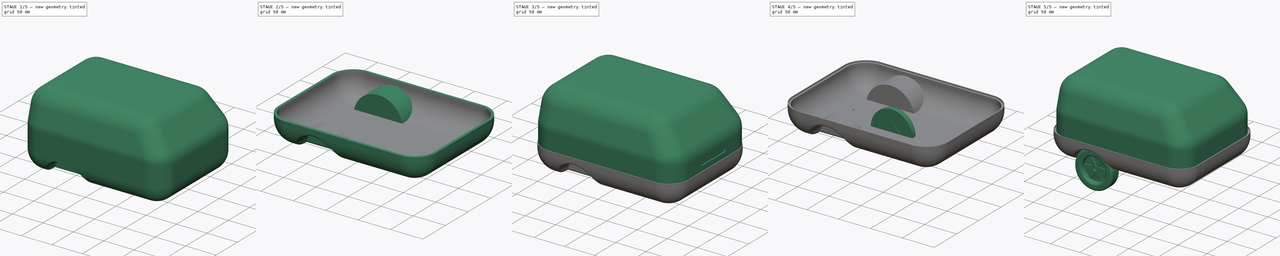
[diagram: build sequence overview — one tinted view per stage of 5, left to right]
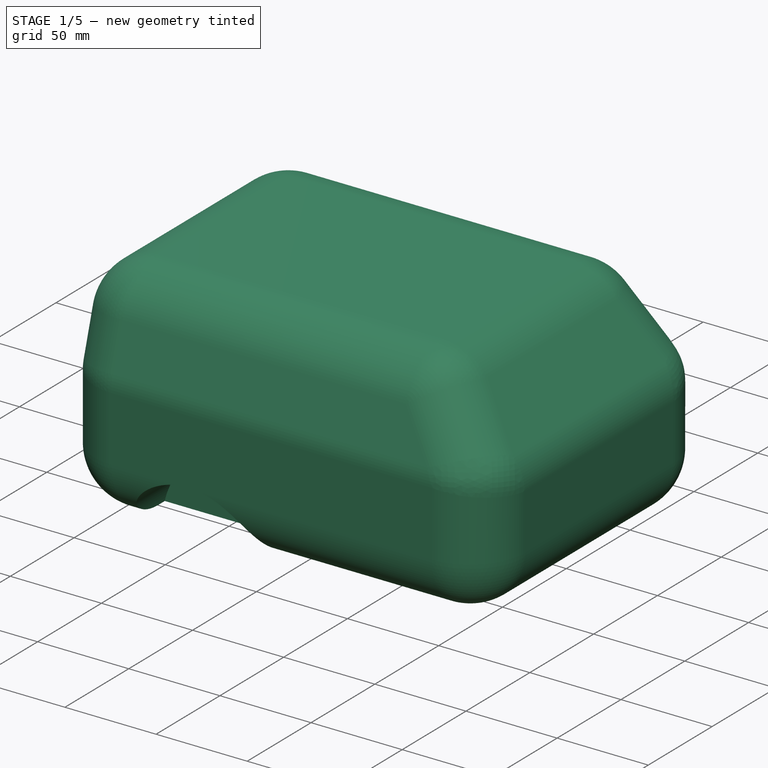
[diagram: stage 1 of 5 — iso view after this stage's code; geometry added in this stage tinted green]
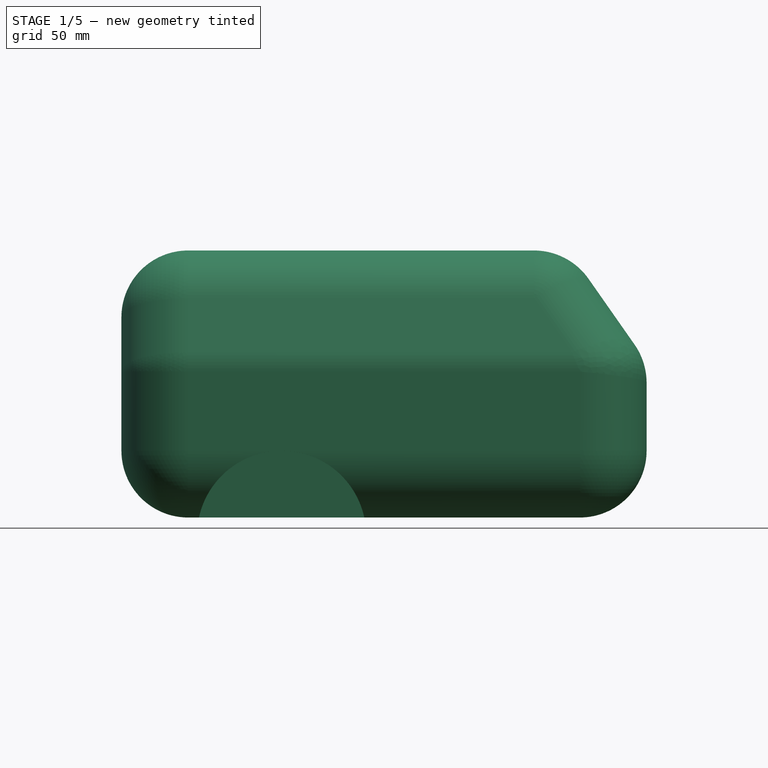
[diagram: stage 1 of 5 — front view after this stage's code; geometry added in this stage tinted green]
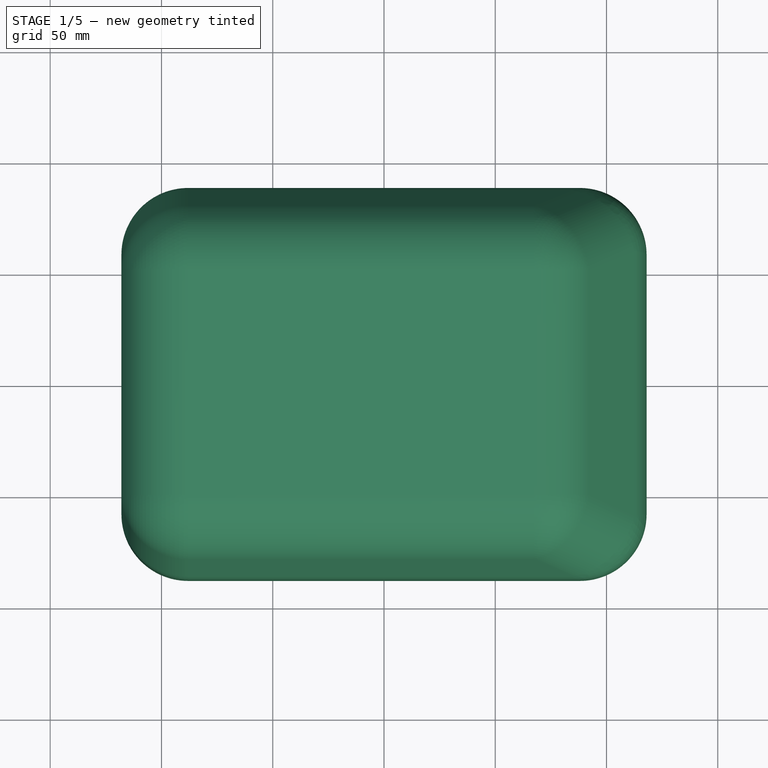
[diagram: stage 1 of 5 — top view after this stage's code; geometry added in this stage tinted green]
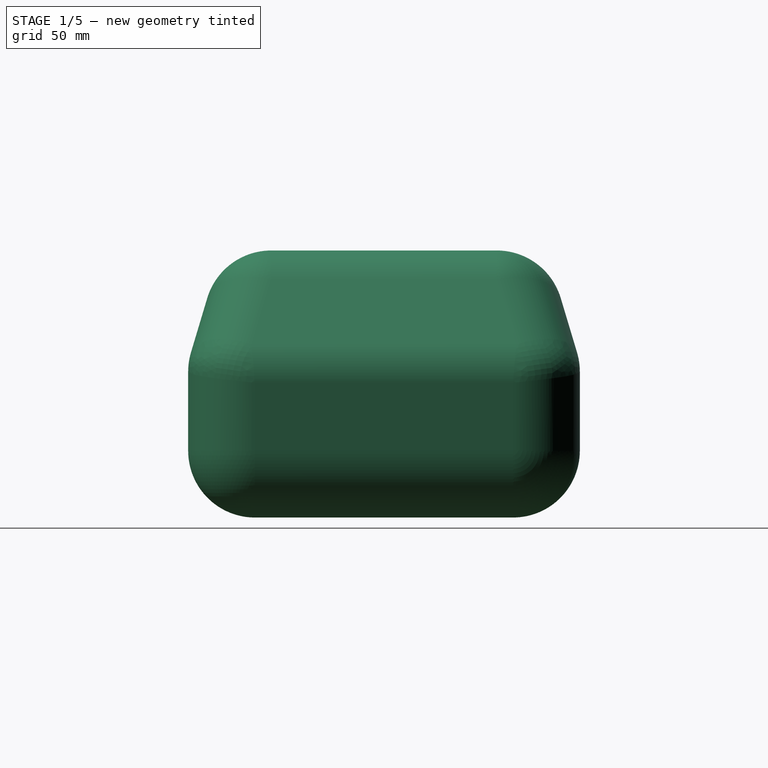
[diagram: stage 1 of 5 — right view after this stage's code; geometry added in this stage tinted green]
FCSTD DOCUMENT  (FreeCAD 0.20R29177 +426 (Git))
Label: bot_3_holes
License: All rights reserved
LicenseURL: http://en.wikipedia.org/wiki/All_rights_reserved
objects: Sketcher::SketchObject×8, PartDesign::Pad×5, Part::FeaturePython×5, PartDesign::Pocket×4, PartDesign::Body×4, Part::Feature×4, PartDesign::Chamfer×2, PartDesign::Fillet×2, App::DocumentObjectGroup×2, PartDesign::FeatureBase×2, PartDesign::Thickness×2, Part::Plane×1, PartDesign::Mirrored×1, PartDesign::PolarPattern×1, App::Part×1, Part::Mirroring×1, Part::MultiFuse×1, Part::Cut×1
note: 59 computed .brp shape members not serialized (recipe doc carries the construction recipe); baked Part::Feature solids carry a one-line shape summary decoded from their .brp

FEATURE [Sketcher::SketchObject] Sketch
  FullyConstrained = true
  MapMode = 5
  Support = -> [XY_Plane]
  sketch-geometry (4):
    g0: LineSegment StartX=-118 StartY=88 StartZ=0 EndX=118 EndY=88 EndZ=0
    g1: LineSegment StartX=118 StartY=88 StartZ=0 EndX=118 EndY=-88 EndZ=0
    g2: LineSegment StartX=118 StartY=-88 StartZ=0 EndX=-118 EndY=-88 EndZ=0
    g3: LineSegment StartX=-118 StartY=-88 StartZ=0 EndX=-118 EndY=88 EndZ=0
  constraints (11):
    c: Coincident(g0,g1)
    c: Coincident(g1,g2)
    c: Coincident(g2,g3)
    c: Coincident(g3,g0)
    c: Horizontal(g0)
    c: Horizontal(g2)
    c: Vertical(g1)
    c: Vertical(g3)
    c: Symmetric(g0,g1,g-1)
    c: DistanceX(g0,g0) = 236
    c: DistanceY(g3,g3) = 176
FEATURE [PartDesign::Pad] Pad
  Direction = (0,0,1)
  Length = 120
  Length2 = 10
  Profile = -> Sketch
  ReferenceAxis = -> Sketch [N_Axis]
  Type = 0
FEATURE [Sketcher::SketchObject] Sketch001
  FullyConstrained = true
  MapMode = 5
  Placement = pos=(0,-88,0) rot=(1,0,0;1.5708rad)
  Support = -> [Pad]
  sketch-geometry (1):
    g0: Circle CenterX=-46 CenterY=-8 CenterZ=0 NormalX=0 NormalY=0 NormalZ=1 AngleXU=0 Radius=38
  constraints (3):
    c: DistanceY(g0,g-1) = 8
    c: DistanceX(g0,g-1) = 46
    c: Diameter(g0) = 76
FEATURE [PartDesign::Chamfer] Chamfer
  Angle = 45
  Base = -> Pad [Edge10,Edge4]
  BaseFeature = -> Pad
  ChamferType = 1
  FlipDirection = true
  Size = 15
  Size2 = 50
  SupportTransform = false
  UseAllEdges = false
FEATURE [PartDesign::Chamfer] Chamfer001
  Angle = 45
  Base = -> Chamfer [Edge14]
  BaseFeature = -> Chamfer
  ChamferType = 1
  FlipDirection = false
  Size = 50
  Size2 = 35
  SupportTransform = false
  UseAllEdges = false
FEATURE [PartDesign::Fillet] Fillet
  Base = -> Chamfer001 [Edge1,Edge2,Edge3,Edge4,Edge5,Edge6,Edge7,Edge8,Edge9,Edge10,Edge11,Edge12,Edge13,Edge14,Edge15,Edge16,Edge17,Edge18,Edge19,Edge20,Edge21]
  BaseFeature = -> Chamfer001
  Radius = 30
  SupportTransform = false
  UseAllEdges = true
FEATURE [Part::Plane] Plane001
  AttacherType = Attacher::AttachEngine3D
  Length = 260
  Placement = pos=(-130,-100,35) rot=(0,0,1;0rad)
  Width = 200
FEATURE [PartDesign::Pocket] Pocket
  BaseFeature = -> Fillet
  Direction = (0,1,-2e-16)
  Length = 35
  Length2 = 5
  Profile = -> Sketch001
  ReferenceAxis = -> Sketch001 [N_Axis]
  Type = 0
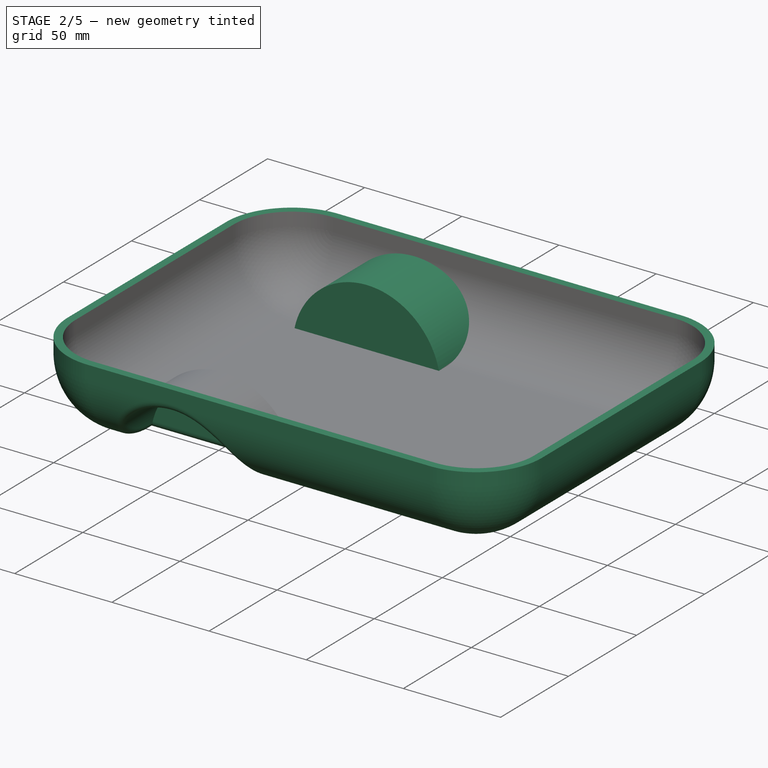
[diagram: stage 2 of 5 — iso view after this stage's code; geometry added in this stage tinted green]
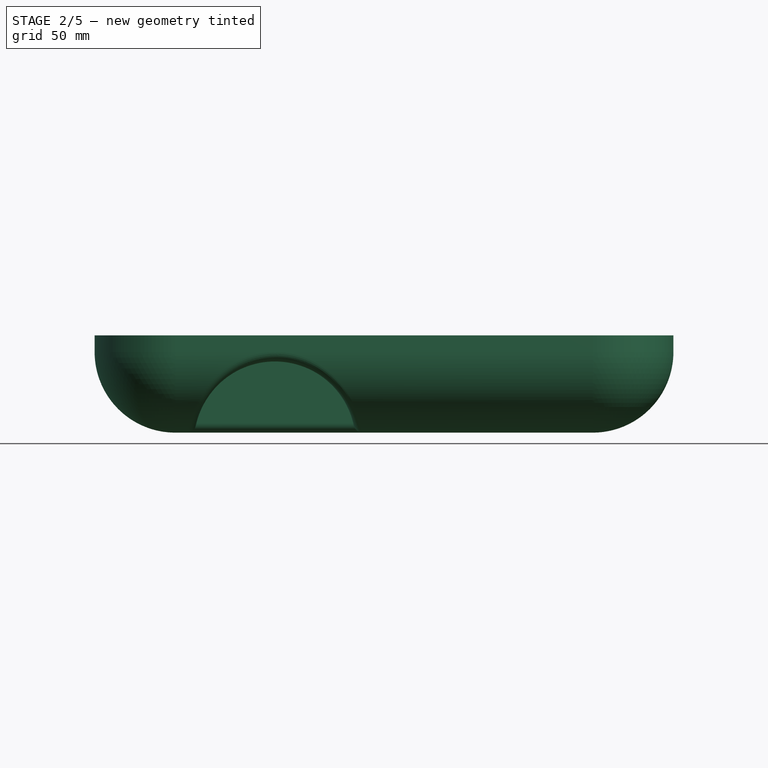
[diagram: stage 2 of 5 — front view after this stage's code; geometry added in this stage tinted green]
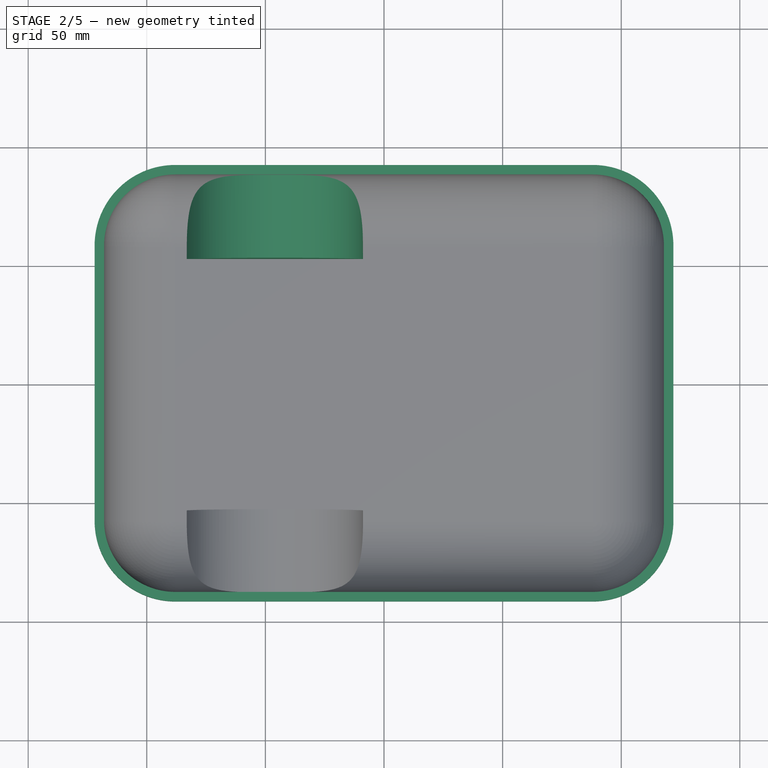
[diagram: stage 2 of 5 — top view after this stage's code; geometry added in this stage tinted green]
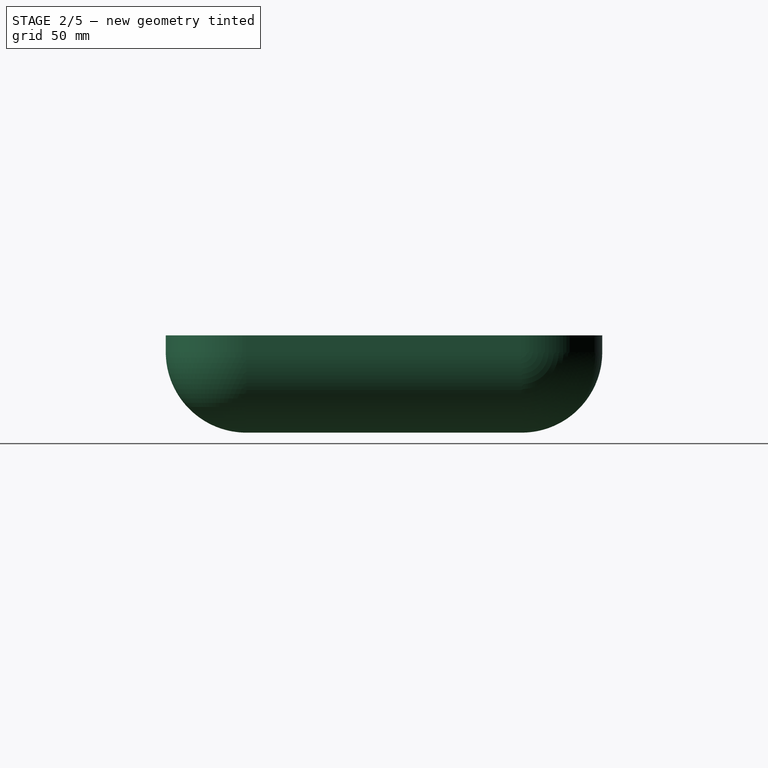
[diagram: stage 2 of 5 — right view after this stage's code; geometry added in this stage tinted green]
FEATURE [PartDesign::Mirrored] Mirrored
  BaseFeature = -> Pocket
  MirrorPlane = -> XZ_Plane
  Originals = -> [Pocket]
FEATURE [Part::Feature] Fusion001  label="Wheel001"
  Placement = pos=(-46,70,-8) rot=(0,0,1;0rad)
  shape: bbox 70.36 x 20 x 70.36 mm, 78 faces (baked)
FEATURE [Part::FeaturePython] Slice001  # WARN: FeaturePython — macro-defined, semantics opaque (R4)
  Base = -> Mirrored
  Mode = 1
  Tolerance = 0
  Tools = -> [Plane001]
FEATURE [Part::FeaturePython] Slice001_child1  label="Slice001.1"  # WARN: FeaturePython — macro-defined, semantics opaque (R4)
  Base = -> Slice001
  FilterType = 1
  Invert = false
  OverrideMaxVal = 0
  WindowFrom = 80
  WindowTo = 100
  items = 1
FEATURE [App::DocumentObjectGroup] GrExplode_Slice001  label="Exploded Slice001"
  Group = -> [Slice001_child0,Slice001_child1]
FEATURE [PartDesign::FeatureBase] BaseFeature
  BaseFeature = -> Slice001_child1
FEATURE [PartDesign::Thickness] Thickness
  Base = -> BaseFeature [Face2]
  BaseFeature = -> BaseFeature
  Intersection = false
  Join = 0
  Mode = 0
  SupportTransform = false
  Value = 4
FEATURE [PartDesign::Pad] Pad005
  BaseFeature = -> Thickness
  Direction = (0,0,1)
  Length = 2
  Length2 = 10
  Profile = -> Thickness [Face24]
  Type = 0
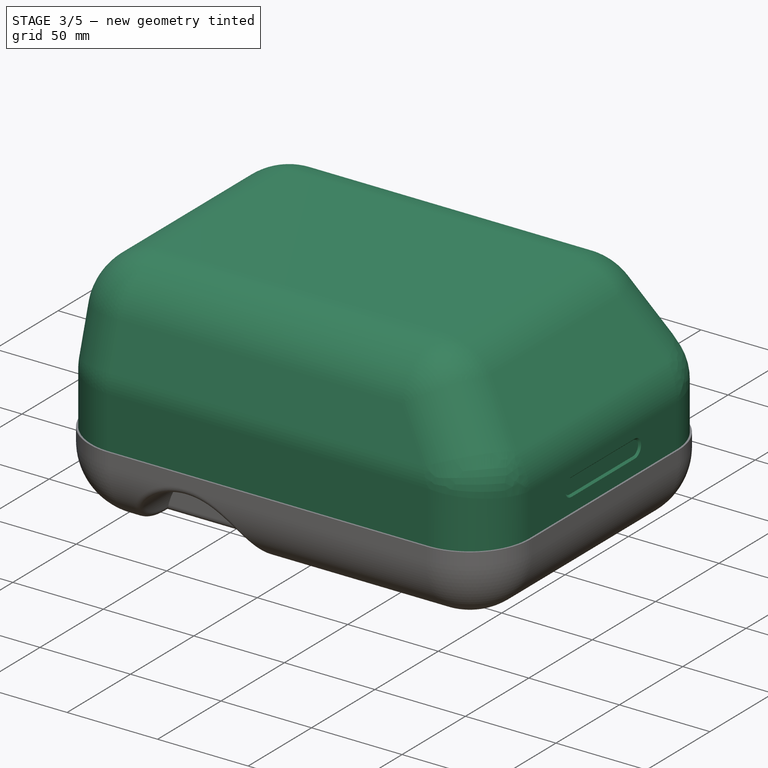
[diagram: stage 3 of 5 — iso view after this stage's code; geometry added in this stage tinted green]
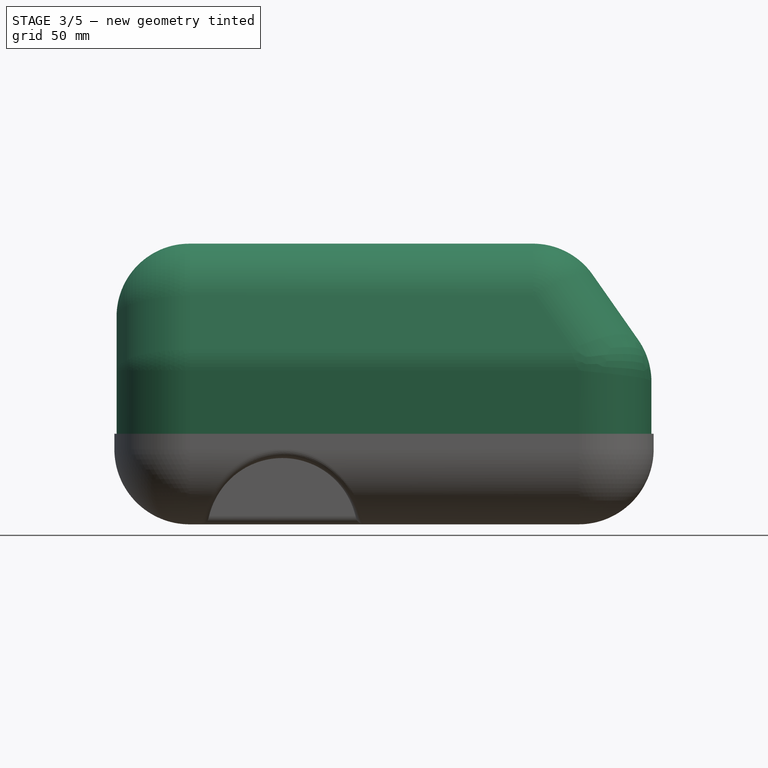
[diagram: stage 3 of 5 — front view after this stage's code; geometry added in this stage tinted green]
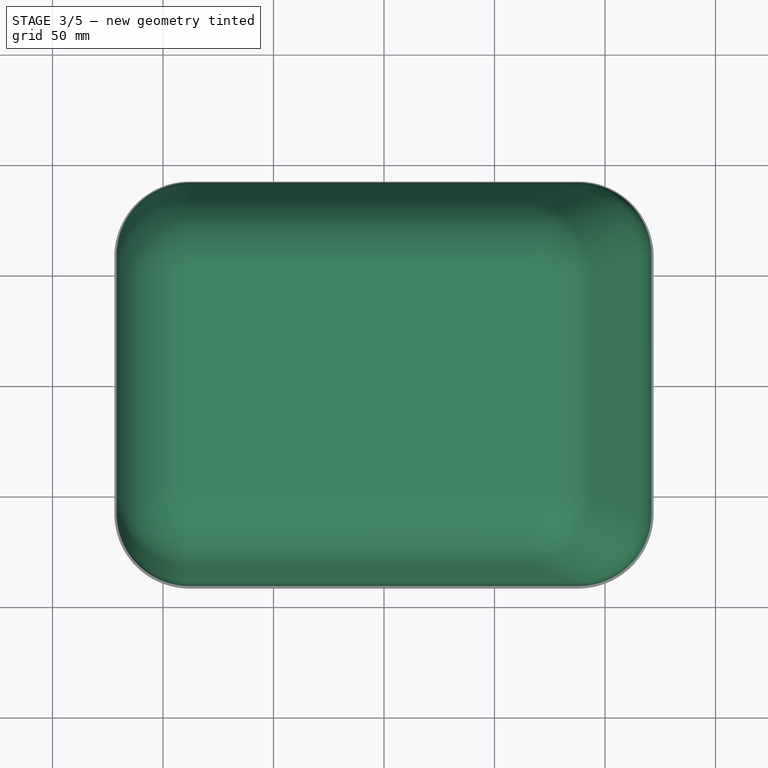
[diagram: stage 3 of 5 — top view after this stage's code; geometry added in this stage tinted green]
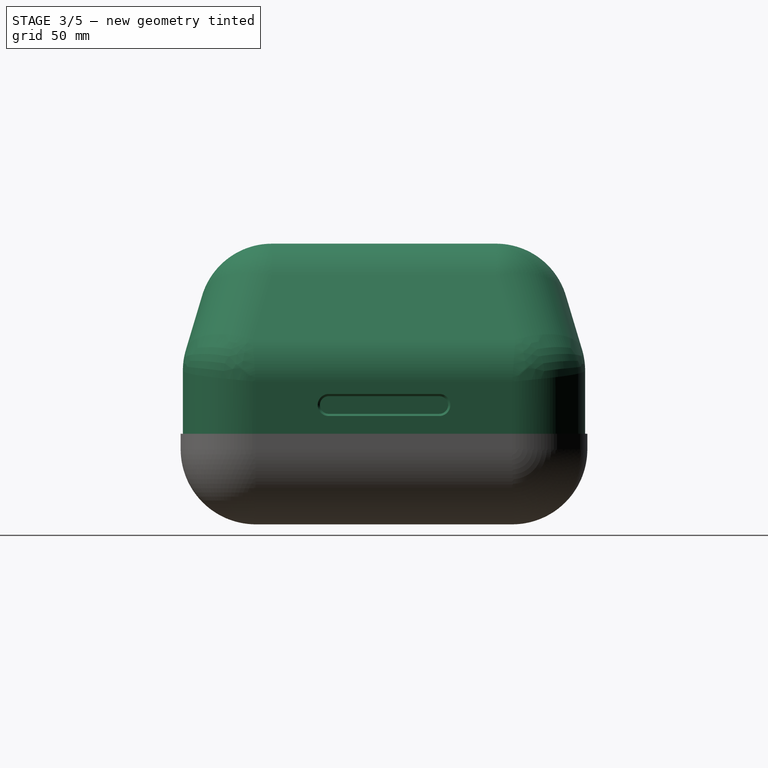
[diagram: stage 3 of 5 — right view after this stage's code; geometry added in this stage tinted green]
FEATURE [Part::FeaturePython] Slice001_child0  label="Slice001.0"  # WARN: FeaturePython — macro-defined, semantics opaque (R4)
  Base = -> Slice001
  FilterType = 1
  Invert = false
  OverrideMaxVal = 0
  WindowFrom = 80
  WindowTo = 100
  items = 0
FEATURE [PartDesign::FeatureBase] BaseFeature001
  BaseFeature = -> Slice001_child0
FEATURE [PartDesign::Thickness] Thickness001
  Base = -> BaseFeature001 [Face19]
  BaseFeature = -> BaseFeature001
  Intersection = false
  Join = 0
  Mode = 0
  SupportTransform = false
  Value = 3
FEATURE [Sketcher::SketchObject] Sketch007
  FullyConstrained = true
  MapMode = 5
  Placement = pos=(121,0,0) rot=(0.57735,0.57735,0.57735;2.0944rad)
  Support = -> [Thickness001]
  sketch-geometry (4):
    g0: ArcOfCircle CenterX=-25 CenterY=50 CenterZ=0 NormalX=0 NormalY=0 NormalZ=1 AngleXU=0 Radius=5 StartAngle=1.5708 EndAngle=4.71239
    g1: ArcOfCircle CenterX=25 CenterY=50 CenterZ=0 NormalX=0 NormalY=0 NormalZ=1 AngleXU=0 Radius=5 StartAngle=4.71239 EndAngle=7.85398
    g2: LineSegment StartX=-25 StartY=45 StartZ=0 EndX=25 EndY=45 EndZ=0
    g3: LineSegment StartX=25 StartY=55 StartZ=0 EndX=-25 EndY=55 EndZ=0
  constraints (9):
    c: Tangent(g0,g2) = -1.5708
    c: Tangent(g2,g1) = -1.5708
    c: Tangent(g1,g3) = -1.5708
    c: Tangent(g3,g0) = -1.5708
    c: Equal(g0,g1)
    c: Symmetric(g1,g0,g-2)
    c: DistanceX(g0,g1) = 50
    c: Diameter(g1) = 10
    c: DistanceY(g-1,g1) = 55
FEATURE [PartDesign::Pocket] Pocket003
  BaseFeature = -> Thickness001
  Direction = (-1,0,0)
  Length = 1
  Length2 = 5
  Profile = -> Sketch007
  ReferenceAxis = -> Sketch007 [N_Axis]
  TaperAngle = -45
  Type = 0
FEATURE [PartDesign::Body] Body005  label="Cap"
  BaseFeature = -> Slice001_child0
  Group = -> [BaseFeature001,Thickness001,Sketch007,Pocket003]
  Origin = -> Origin006
  Tip = -> Pocket003
FEATURE [Sketcher::SketchObject] Sketch008
  FullyConstrained = true
  MapMode = 5
  Support = -> [Pad005]
  sketch-geometry (4):
    g0: Circle CenterX=-80 CenterY=18.5 CenterZ=0 NormalX=0 NormalY=0 NormalZ=1 AngleXU=0 Radius=1.5
    g1: Circle CenterX=-43 CenterY=18.5 CenterZ=0 NormalX=0 NormalY=0 NormalZ=1 AngleXU=0 Radius=1.5
    g2: Circle CenterX=-80 CenterY=-18.5 CenterZ=0 NormalX=0 NormalY=0 NormalZ=1 AngleXU=0 Radius=1.5
    g3: Circle CenterX=-43 CenterY=-18.5 CenterZ=0 NormalX=0 NormalY=0 NormalZ=1 AngleXU=0 Radius=1.5
  constraints (10):
    c: Diameter(g0) = 3
    c: DistanceX(g0,g-1) = 80
    c: Equal(g0,g1)
    c: Equal(g3,g0)
    c: Equal(g2,g0)
    c: Symmetric(g1,g3,g-1)
    c: DistanceX(g0,g1) = 37
    c: Symmetric(g2,g0,g-1)
    c: DistanceY(g0,g1) = 0
    c: DistanceY(g2,g0) = 37
FEATURE [PartDesign::Pocket] Pocket004
  BaseFeature = -> Pad005
  Direction = (0,0,-1)
  Length = 5
  Length2 = 5
  Profile = -> Sketch008
  ReferenceAxis = -> Sketch008 [N_Axis]
  Type = 0
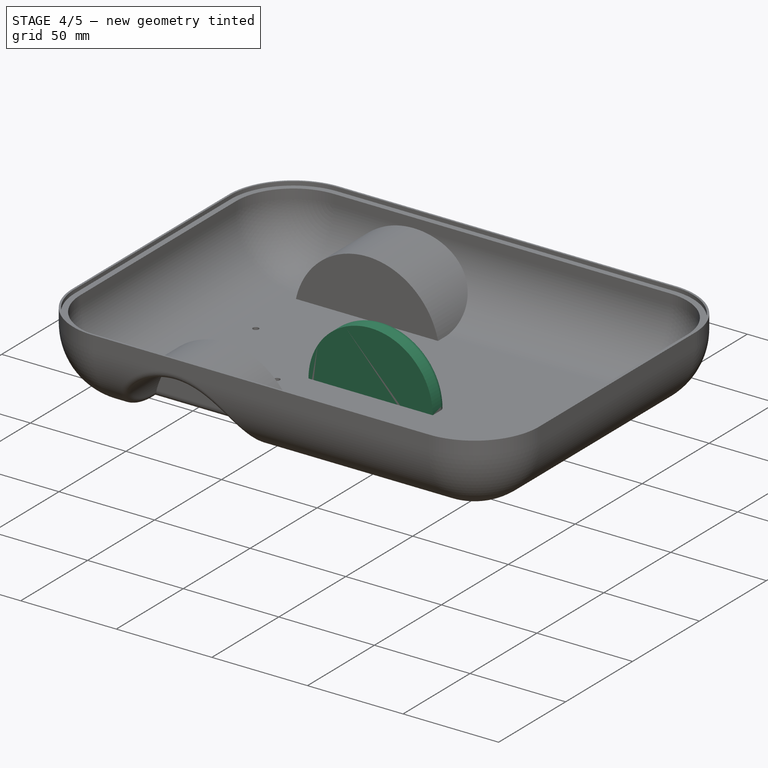
[diagram: stage 4 of 5 — iso view after this stage's code; geometry added in this stage tinted green]
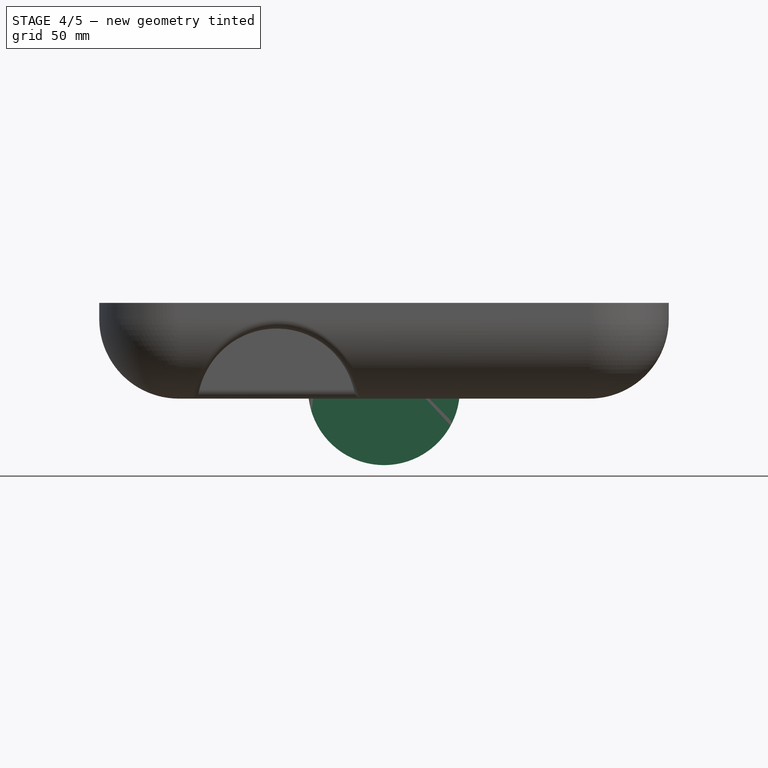
[diagram: stage 4 of 5 — front view after this stage's code; geometry added in this stage tinted green]
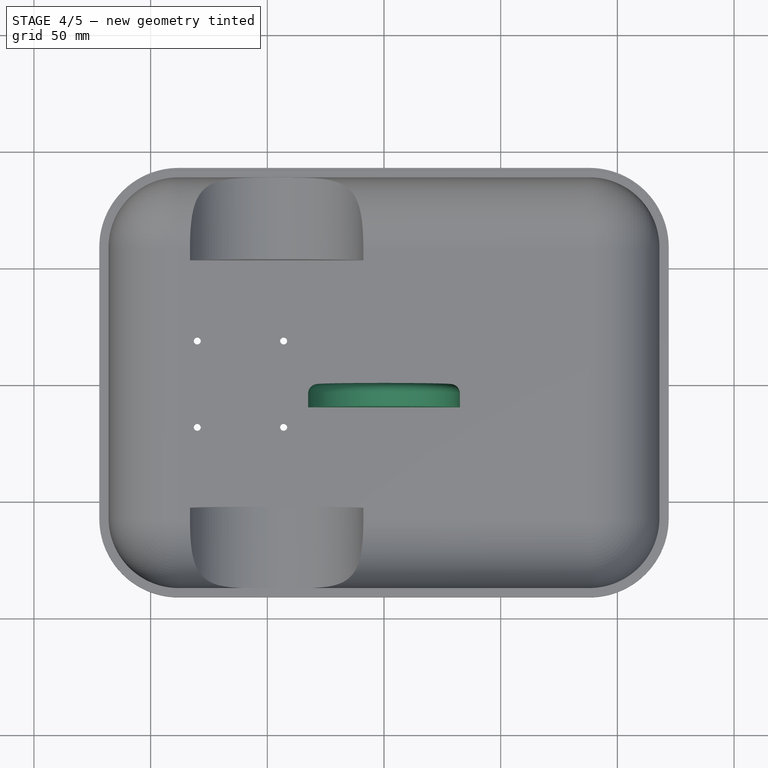
[diagram: stage 4 of 5 — top view after this stage's code; geometry added in this stage tinted green]
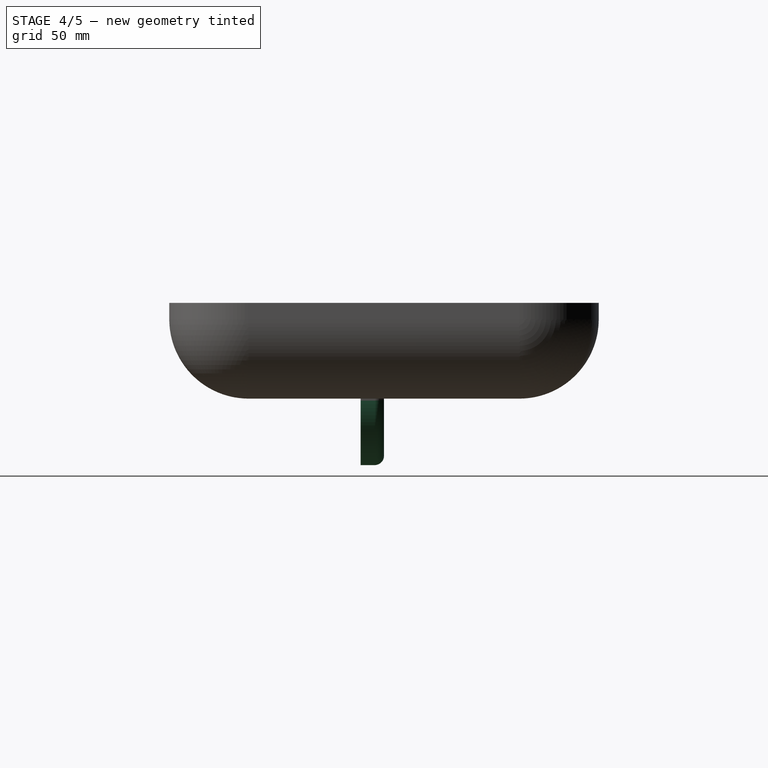
[diagram: stage 4 of 5 — right view after this stage's code; geometry added in this stage tinted green]
FEATURE [App::DocumentObjectGroup] GrExplode_Slice  label="Exploded Slice"
  Group = -> [Slice_child0]
FEATURE [Sketcher::SketchObject] Sketch003
  FullyConstrained = true
  MapMode = 5
  Placement = pos=(0,0,0) rot=(1,0,0;1.5708rad)
  Support = -> [XZ_Plane004]
  sketch-geometry (1):
    g0: Circle CenterX=0 CenterY=0 CenterZ=0 NormalX=0 NormalY=0 NormalZ=1 AngleXU=0 Radius=32.5
  constraints (2):
    c: Coincident(g0,g-1)
    c: Diameter(g0) = 65
FEATURE [PartDesign::Pad] Pad002
  Direction = (0,-1,2e-16)
  Length = 10
  Length2 = 10
  Placement = pos=(0,0,0) rot=(1,0,0;1.5708rad)
  Profile = -> Sketch003
  ReferenceAxis = -> Sketch003 [N_Axis]
  Type = 0
FEATURE [Sketcher::SketchObject] Sketch004
  FullyConstrained = true
  MapMode = 5
  Placement = pos=(0,0,0) rot=(1,0,0;1.5708rad)
  Support = -> [XZ_Plane004]
  sketch-geometry (1):
    g0: Circle CenterX=0 CenterY=0 CenterZ=0 NormalX=0 NormalY=0 NormalZ=1 AngleXU=0 Radius=20
  constraints (2):
    c: Coincident(g0,g-1)
    c: Diameter(g0) = 40
FEATURE [PartDesign::Pocket] Pocket002
  BaseFeature = -> Pad002
  Direction = (0,1,-2e-16)
  Length = 8
  Length2 = 5
  Placement = pos=(0,0,0) rot=(1,0,0;1.5708rad)
  Profile = -> Sketch004
  ReferenceAxis = -> Sketch004 [N_Axis]
  Reversed = true
  Type = 0
FEATURE [PartDesign::Fillet] Fillet002
  Base = -> Pocket002 [Face2]
  BaseFeature = -> Pocket002
  Placement = pos=(0,0,0) rot=(1,0,0;1.5708rad)
  Radius = 4
  SupportTransform = false
  UseAllEdges = false
FEATURE [Sketcher::SketchObject] Sketch005
  FullyConstrained = true
  MapMode = 5
  Placement = pos=(0,-8,1.8e-15) rot=(-1,0,0;1.5708rad)
  Support = -> [Fillet002]
  sketch-geometry (2):
    g0: Circle CenterX=0 CenterY=0 CenterZ=0 NormalX=0 NormalY=0 NormalZ=1 AngleXU=0 Radius=6
    g1: Circle CenterX=0 CenterY=0 CenterZ=0 NormalX=0 NormalY=0 NormalZ=1 AngleXU=0 Radius=3
  constraints (4):
    c: Coincident(g0,g-1)
    c: Coincident(g1,g0)
    c: Diameter(g1) = 6
    c: Diameter(g0) = 12
FEATURE [PartDesign::Pad] Pad003
  BaseFeature = -> Fillet002
  Direction = (0,1,-2e-16)
  Length = 3
  Length2 = 10
  Placement = pos=(0,0,0) rot=(1,0,0;1.5708rad)
  Profile = -> Sketch005
  ReferenceAxis = -> Sketch005 [N_Axis]
  Type = 0
FEATURE [Sketcher::SketchObject] Sketch006
  FullyConstrained = false
  MapMode = 5
  Placement = pos=(0,-8,1.8e-15) rot=(-1,0,0;1.5708rad)
  Support = -> [Pad003]
  sketch-geometry (4):
    g0: LineSegment StartX=3.64366 StartY=4 StartZ=0 EndX=3.64366 EndY=-4 EndZ=0
    g1: LineSegment StartX=3.64366 StartY=-4 StartZ=0 EndX=21.1042 EndY=-2 EndZ=0
    g2: LineSegment StartX=21.1042 StartY=-2 StartZ=0 EndX=21.1042 EndY=2 EndZ=0
    g3: LineSegment StartX=21.1042 StartY=2 StartZ=0 EndX=3.64366 EndY=4 EndZ=0
  constraints (8):
    c: Coincident(g0,g1)
    c: Coincident(g1,g2)
    c: Coincident(g2,g3)
    c: Coincident(g3,g0)
    c: Symmetric(g2,g1,g-1)
    c: Symmetric(g0,g0,g-1)
    c: DistanceY(g2,g2) = 4
    c: DistanceY(g0,g0) = 8
FEATURE [PartDesign::Pad] Pad004
  BaseFeature = -> Pad003
  Direction = (0,1,-2e-16)
  Length = 2
  Length2 = 10
  Placement = pos=(0,0,0) rot=(1,0,0;1.5708rad)
  Profile = -> Sketch006
  ReferenceAxis = -> Sketch006 [N_Axis]
  Type = 0
FEATURE [PartDesign::Body] Body004  label="Base"
  BaseFeature = -> Slice001_child1
  Group = -> [BaseFeature,Thickness,Pad005,Sketch008,Pocket004]
  Origin = -> Origin005
  Tip = -> Pocket004
FEATURE [Part::Cut] Cut  label="Base_Groove"
  Base = -> Body004
  Tool = -> Body005
FEATURE [Part::Feature] L298N_Motor_Driver
  Placement = pos=(-61.3884,-0.29497,0.510836) rot=(-0.57735,0.57735,0.57735;4.18879rad)
  shape: bbox 43 x 43 x 28.01 mm, 1116 faces, 0 solids (baked)
FEATURE [Part::Feature] Feature  label="Arduino nano001"
  Placement = pos=(-6,8,28) rot=(-1,0,0;4.71239rad)
  shape: bbox 44.95 x 17.81 x 20.74 mm, 6942 faces, 133 solids (baked)
FEATURE [Part::Feature] Feature001  label="Raspberry Pi 4 Model B001"
  Placement = pos=(57,13,5) rot=(-0.57735,0.57735,0.57735;4.18879rad)
  shape: bbox 58.41 x 89 x 19.91 mm, 10487 faces, 109 solids (baked)
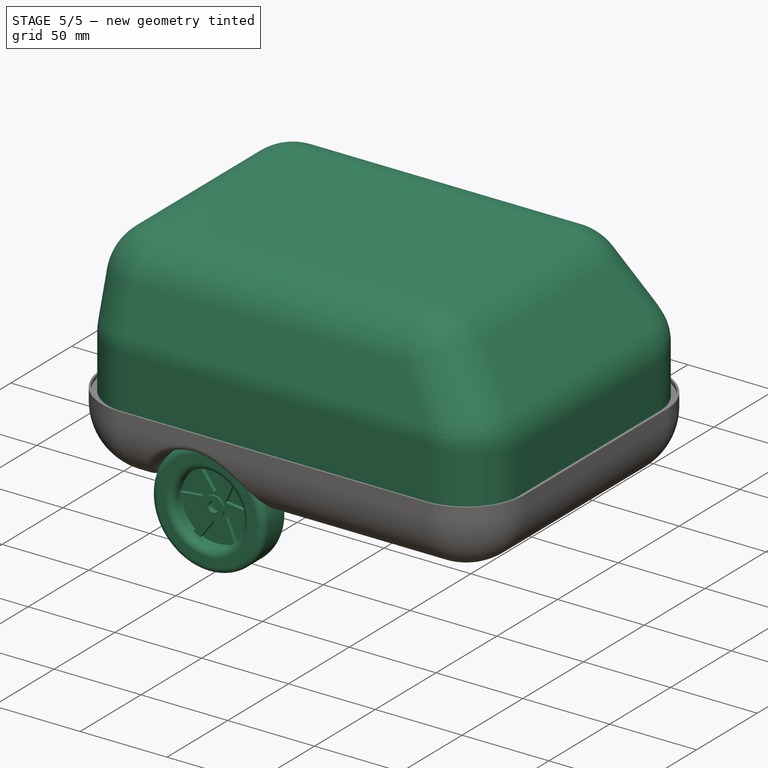
[diagram: stage 5 of 5 — iso view after this stage's code; geometry added in this stage tinted green]
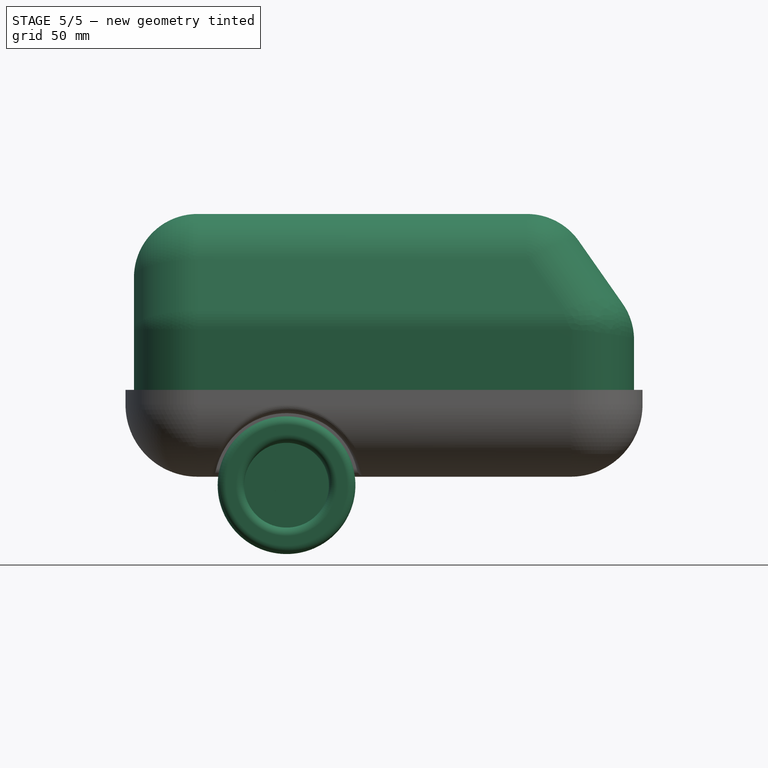
[diagram: stage 5 of 5 — front view after this stage's code; geometry added in this stage tinted green]
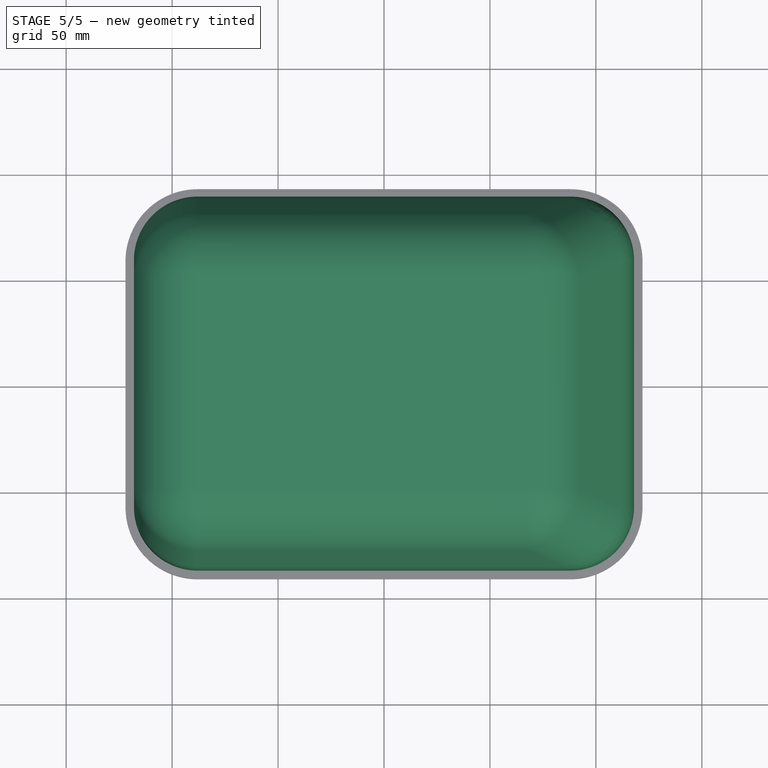
[diagram: stage 5 of 5 — top view after this stage's code; geometry added in this stage tinted green]
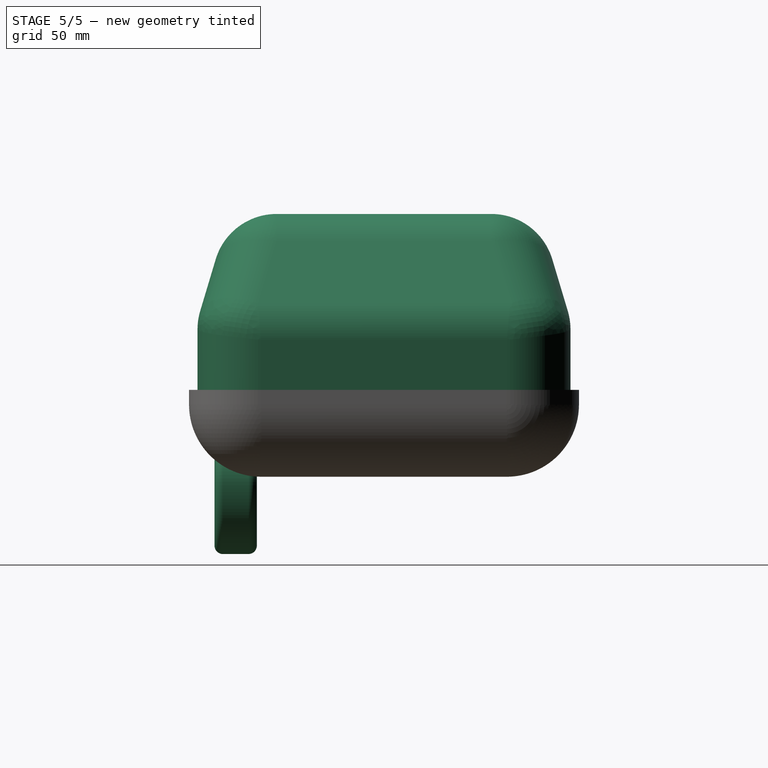
[diagram: stage 5 of 5 — right view after this stage's code; geometry added in this stage tinted green]
FEATURE [PartDesign::Body] Body
  Group = -> [Sketch,Pad,Sketch001,Chamfer,Chamfer001,Fillet,Pocket,Mirrored]
  Origin = -> Origin
  Tip = -> Mirrored
FEATURE [Part::FeaturePython] Slice  # WARN: FeaturePython — macro-defined, semantics opaque (R4)
  Base = -> Body
  Mode = 1
  Tolerance = 0
  Tools = -> [Plane001]
FEATURE [Part::FeaturePython] Slice_child0  label="Slice.0"  # WARN: FeaturePython — macro-defined, semantics opaque (R4)
  Base = -> Slice
  FilterType = 1
  Invert = false
  OverrideMaxVal = 0
  WindowFrom = 80
  WindowTo = 100
  items = 0
FEATURE [PartDesign::PolarPattern] PolarPattern
  Angle = 360
  Axis = -> Sketch006 [N_Axis]
  BaseFeature = -> Pad004
  Occurrences = 6
  Originals = -> [Pad004]
  Placement = pos=(0,0,0) rot=(1,0,0;1.5708rad)
FEATURE [PartDesign::Body] Body003
  Group = -> [Sketch003,Pad002,Sketch004,Pocket002,Fillet002,Sketch005,Pad003,Sketch006,Pad004,PolarPattern]
  Origin = -> Origin004
  Placement = pos=(0,10,0) rot=(0,0,1;0rad)
  Tip = -> PolarPattern
FEATURE [App::Part] Part  label="wheel"
  Group = -> [Body003]
  Origin = -> Origin003
FEATURE [Part::Mirroring] Part__Mirroring  label="Body003 (Mirror #1)"
  Base = (0,0,0)
  Normal = (0,1,0)
  Source = -> Body003
FEATURE [Part::MultiFuse] Fusion  label="Wheel"
  Placement = pos=(-46,-70,-8) rot=(0,0,1;0rad)
  Shapes = -> [Part__Mirroring,Part]
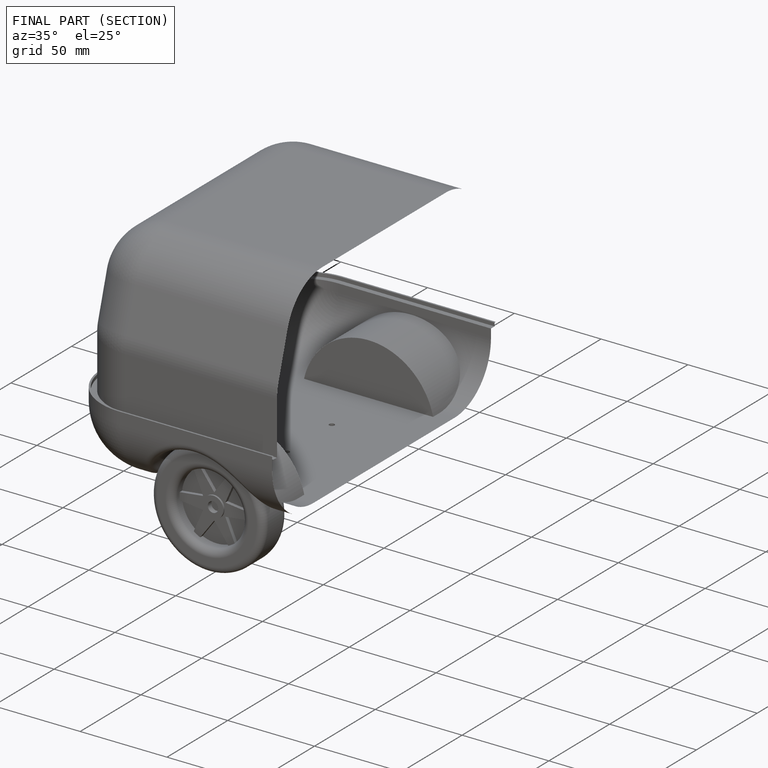
[diagram: finished part — half-section view (interior)]
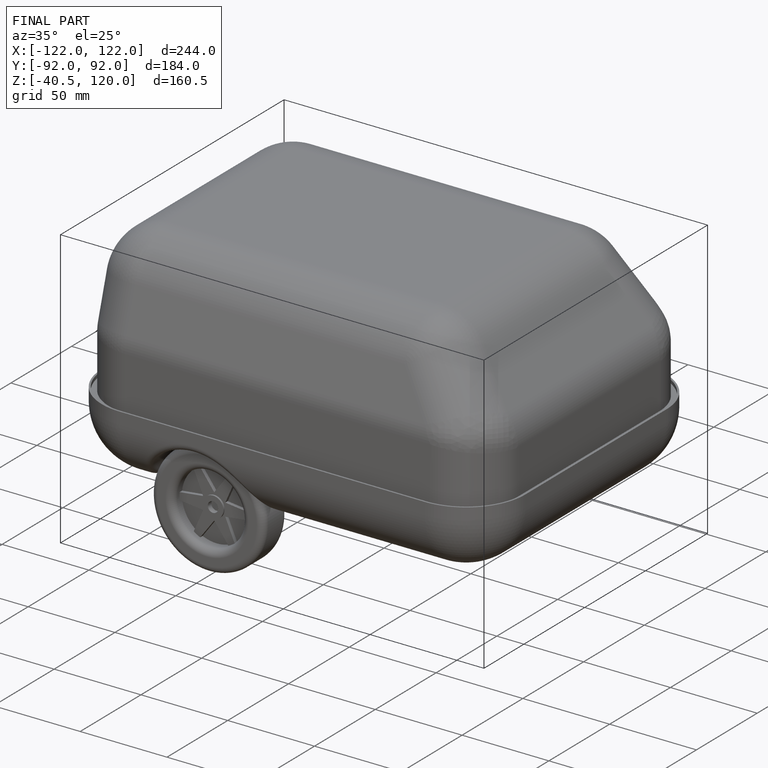
[diagram: finished part — iso view with bounding-box wireframe]
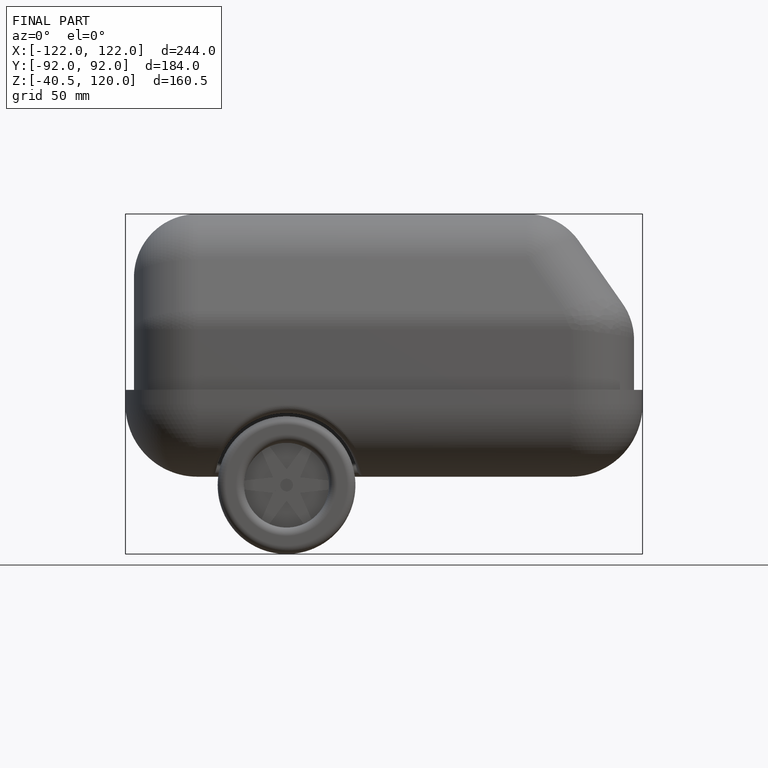
[diagram: finished part — front view with bounding-box wireframe]
